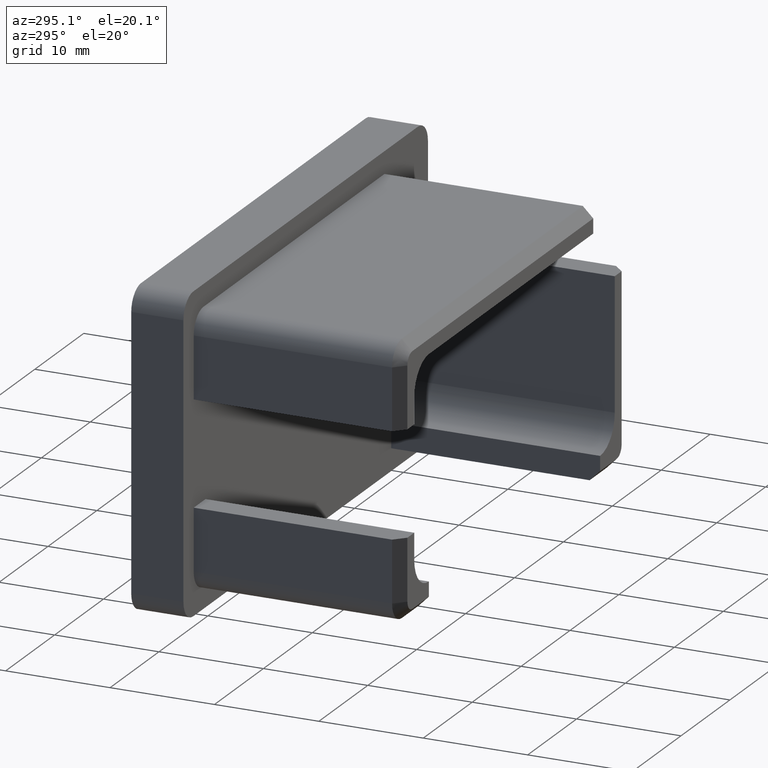
[diagram: clean part render]
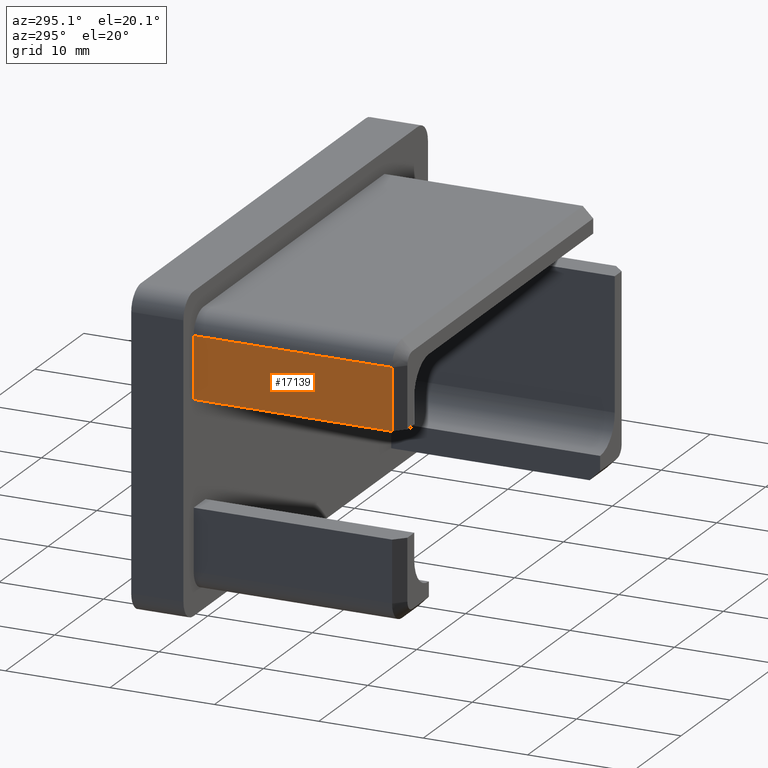
[diagram: same view with one face highlighted and labeled with its STEP entity id]
A machine part, auxiliary view. The second image highlights one B-rep face of the part: STEP entity #17139.
In plain terms, the highlighted planar face has unit normal (1, 0, 0).
Its self-contained STEP definition (entity closure, byte-faithful):
#85 = CARTESIAN_POINT ( 'NONE',  ( -22.90000000000000568, -20.00000000000000000, 4.999999999999994671 ) ) ;
#265 = FACE_OUTER_BOUND ( 'NONE', #16295, .T. ) ;
#505 = LINE ( 'NONE', #85, #3684 ) ;
#1255 = DIRECTION ( 'NONE',  ( 0.000000000000000000, 0.000000000000000000, -1.000000000000000000 ) ) ;
#1802 = ORIENTED_EDGE ( 'NONE', *, *, #12675, .F. ) ;
#2063 = VERTEX_POINT ( 'NONE', #9314 ) ;
#2417 = CARTESIAN_POINT ( 'NONE',  ( -22.90000000000000568, -20.00000000000000000, 12.90000000000000213 ) ) ;
#2750 = EDGE_CURVE ( 'NONE', #17049, #16655, #10438, .T. ) ;
#2788 = VECTOR ( 'NONE', #2988, 1000.000000000000000 ) ;
#2988 = DIRECTION ( 'NONE',  ( 0.000000000000000000, 0.000000000000000000, 1.000000000000000000 ) ) ;
#3583 = VECTOR ( 'NONE', #1255, 1000.000000000000000 ) ;
#3673 = DIRECTION ( 'NONE',  ( 1.000000000000000000, 0.000000000000000000, 0.000000000000000000 ) ) ;
#3684 = VECTOR ( 'NONE', #5536, 1000.000000000000000 ) ;
#4191 = ORIENTED_EDGE ( 'NONE', *, *, #6300, .T. ) ;
#4998 = DIRECTION ( 'NONE',  ( 0.000000000000000000, 0.000000000000000000, -1.000000000000000000 ) ) ;
#5536 = DIRECTION ( 'NONE',  ( -0.000000000000000000, 1.000000000000000000, -0.000000000000000000 ) ) ;
#6219 = CARTESIAN_POINT ( 'NONE',  ( -22.90000000000000568, -20.00000000000000000, 10.90000000000000213 ) ) ;
#6300 = EDGE_CURVE ( 'NONE', #16655, #2063, #10618, .T. ) ;
#6638 = EDGE_CURVE ( 'NONE', #2063, #7786, #6780, .T. ) ;
#6780 = LINE ( 'NONE', #9362, #3583 ) ;
#7786 = VERTEX_POINT ( 'NONE', #9608 ) ;
#8665 = VECTOR ( 'NONE', #17379, 1000.000000000000000 ) ;
#8815 = CARTESIAN_POINT ( 'NONE',  ( -22.90000000000000568, -19.00000000000000000, 4.999999999999994671 ) ) ;
#9314 = CARTESIAN_POINT ( 'NONE',  ( -22.90000000000000568, 0.000000000000000000, 10.90000000000000213 ) ) ;
#9362 = CARTESIAN_POINT ( 'NONE',  ( -22.90000000000000568, 0.000000000000000000, 12.90000000000000213 ) ) ;
#9608 = CARTESIAN_POINT ( 'NONE',  ( -22.90000000000000568, 0.000000000000000000, 4.999999999999994671 ) ) ;
#9882 = ORIENTED_EDGE ( 'NONE', *, *, #6638, .T. ) ;
#9983 = CARTESIAN_POINT ( 'NONE',  ( -22.90000000000000568, -19.00000000000000000, 10.90000000000000213 ) ) ;
#10090 = ORIENTED_EDGE ( 'NONE', *, *, #2750, .T. ) ;
#10438 = LINE ( 'NONE', #9983, #2788 ) ;
#10618 = LINE ( 'NONE', #6219, #8665 ) ;
#11507 = CARTESIAN_POINT ( 'NONE',  ( -22.90000000000000568, -19.00000000000000000, 10.90000000000000213 ) ) ;
#11652 = AXIS2_PLACEMENT_3D ( 'NONE', #2417, #3673, #4998 ) ;
#12675 = EDGE_CURVE ( 'NONE', #17049, #7786, #505, .T. ) ;
#14441 = PLANE ( 'NONE',  #11652 ) ;
#16295 = EDGE_LOOP ( 'NONE', ( #1802, #10090, #4191, #9882 ) ) ;
#16655 = VERTEX_POINT ( 'NONE', #11507 ) ;
#17049 = VERTEX_POINT ( 'NONE', #8815 ) ;
#17139 = ADVANCED_FACE ( 'NONE', ( #265 ), #14441, .F. ) ;
#17379 = DIRECTION ( 'NONE',  ( -0.000000000000000000, 1.000000000000000000, 0.000000000000000000 ) ) ;